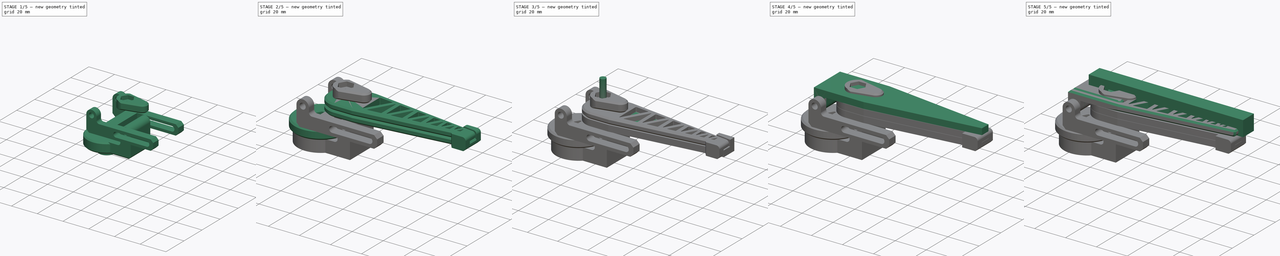
[diagram: build sequence overview — one tinted view per stage of 5, left to right]
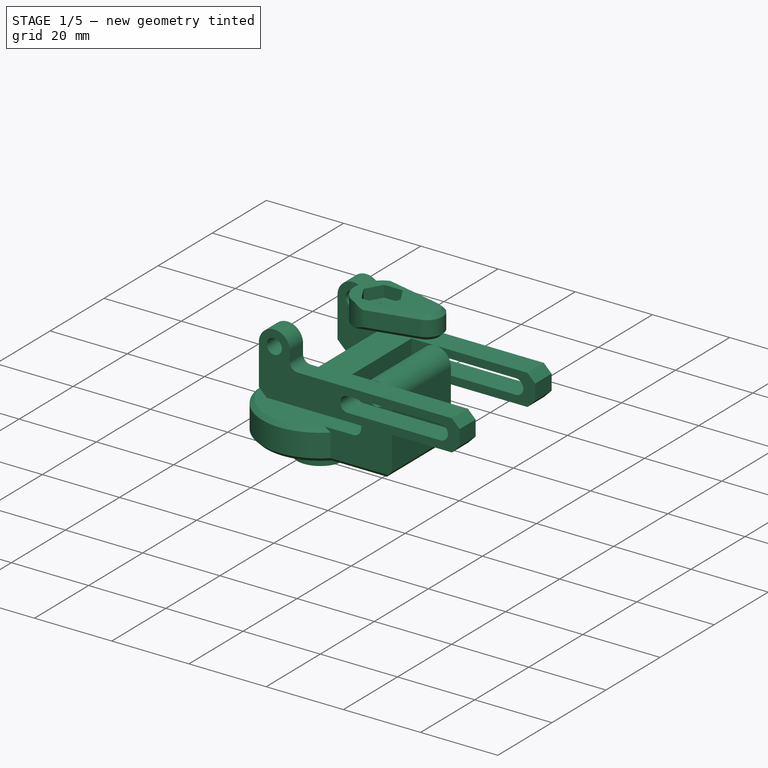
[diagram: stage 1 of 5 — iso view after this stage's code; geometry added in this stage tinted green]
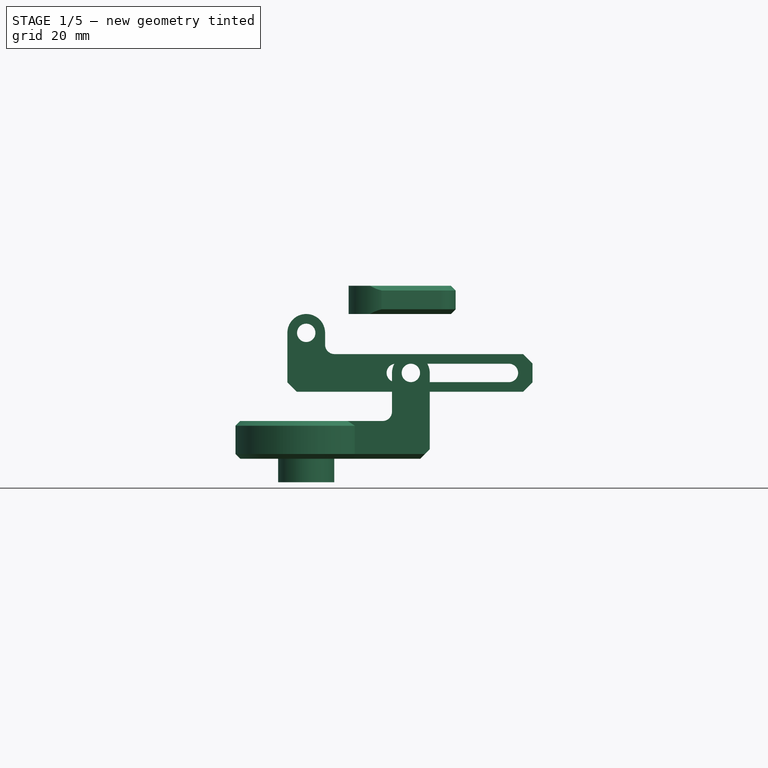
[diagram: stage 1 of 5 — front view after this stage's code; geometry added in this stage tinted green]
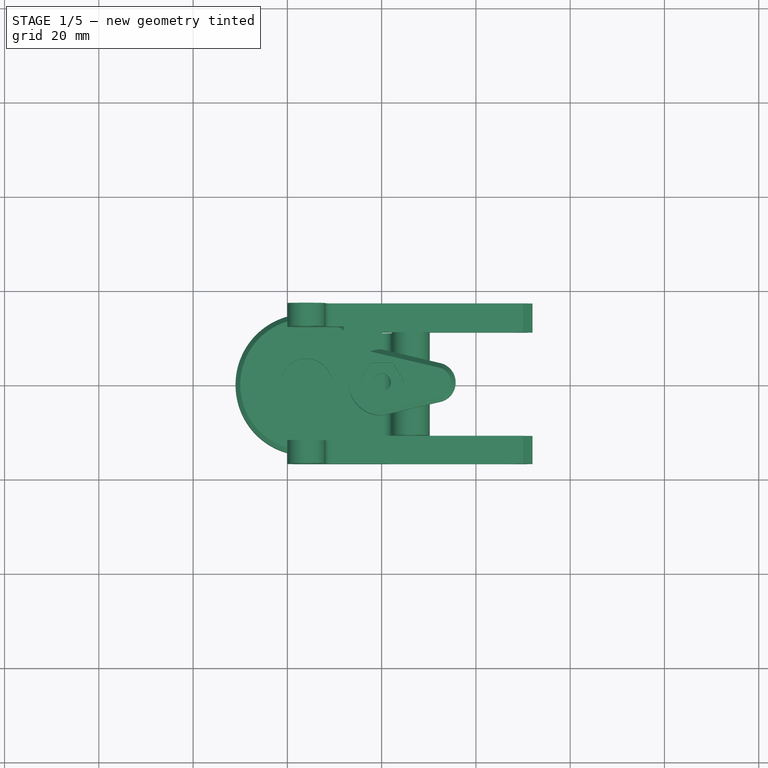
[diagram: stage 1 of 5 — top view after this stage's code; geometry added in this stage tinted green]
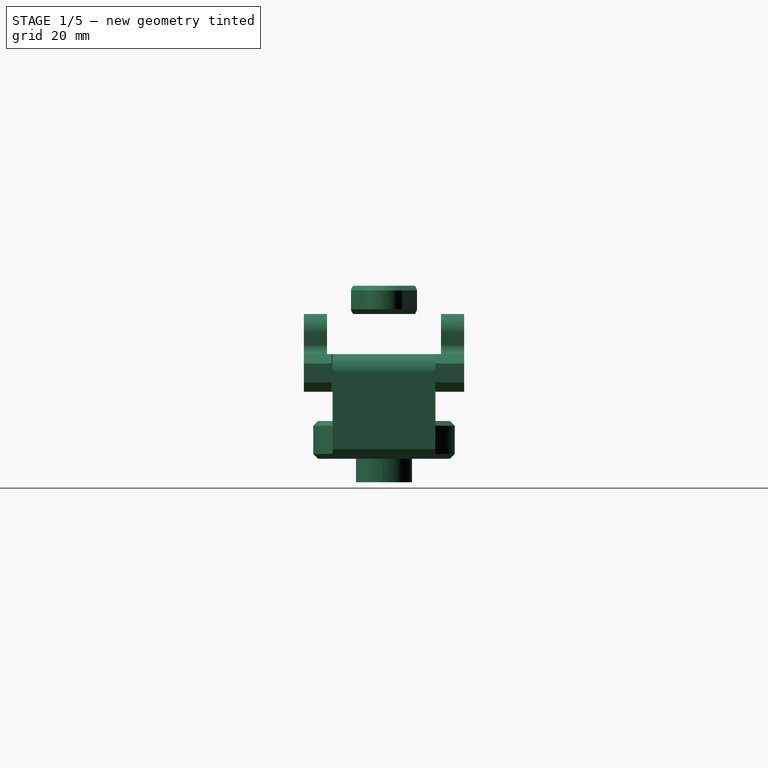
[diagram: stage 1 of 5 — right view after this stage's code; geometry added in this stage tinted green]
FCSTD DOCUMENT  (FreeCAD 0.14R3700 (Git))
Label: tripod_mk2
License: CC-BY 3.0
LicenseURL: http://creativecommons.org/licenses/by/3.0/
objects: Sketcher::SketchObject×17, Part::Cut×16, PartDesign::Pad×12, Part::Fillet×10, Part::Chamfer×10, Part::MultiFuse×9, Part::Box×7, Part::FeaturePython×7, Part::Cylinder×5, Part::RegularPolygon×3, Part::Extrusion×3, Part::Feature×3, Part::Loft×1, Part::Revolution×1
note: 116 computed .brp shape members not serialized (recipe doc carries the construction recipe); baked Part::Feature solids carry a one-line shape summary decoded from their .brp

FEATURE [Sketcher::SketchObject] Sketch003  label="skPivot"
  Placement = pos=(0,17,0) rot=(1,0,0;1.5708rad)
  sketch-geometry (17):
    g0: LineSegment StartX=-12 StartY=-4 StartZ=0 EndX=-12 EndY=-8.5 EndZ=0
    g1: LineSegment StartX=-12 StartY=-8.5 StartZ=0 EndX=32 EndY=-8.5 EndZ=0
    g2: LineSegment StartX=32 StartY=-8.5 StartZ=0 EndX=32 EndY=-16.5 EndZ=0
    g3: LineSegment StartX=32 StartY=-16.5 StartZ=0 EndX=-20 EndY=-16.5 EndZ=0
    g4: LineSegment StartX=-20 StartY=-16.5 StartZ=0 EndX=-20 EndY=-4 EndZ=0
    g5: LineSegment [constr] StartX=-20 StartY=-4 StartZ=0 EndX=-12 EndY=-4 EndZ=0
    g6: ArcOfCircle CenterX=-16 CenterY=-4 CenterZ=0 NormalX=0 NormalY=0 NormalZ=1 Radius=4 StartAngle=0 EndAngle=3.14159
    g7: Circle CenterX=-16 CenterY=-4 CenterZ=0 NormalX=0 NormalY=0 NormalZ=1 Radius=1.95
    g8: LineSegment [constr] StartX=-12 StartY=-4 StartZ=0 EndX=0 EndY=-4 EndZ=0
    g9: LineSegment [constr] StartX=0 StartY=-4 StartZ=0 EndX=0 EndY=0 EndZ=0
    g10: LineSegment StartX=3 StartY=-10.55 StartZ=0 EndX=27 EndY=-10.55 EndZ=0
    g11: LineSegment [constr] StartX=27 StartY=-10.55 StartZ=0 EndX=27 EndY=-14.45 EndZ=0
    g12: LineSegment StartX=27 StartY=-14.45 StartZ=0 EndX=3 EndY=-14.45 EndZ=0
    g13: LineSegment [constr] StartX=3 StartY=-14.45 StartZ=0 EndX=3 EndY=-10.55 EndZ=0
    g14: ArcOfCircle CenterX=3 CenterY=-12.5 CenterZ=0 NormalX=0 NormalY=0 NormalZ=1 Radius=1.95 StartAngle=1.5708 EndAngle=4.71239
    g15: ArcOfCircle CenterX=27 CenterY=-12.5 CenterZ=0 NormalX=0 NormalY=0 NormalZ=1 Radius=1.95 StartAngle=4.71239 EndAngle=7.85398
    g16: LineSegment [constr] StartX=27 StartY=-12.5 StartZ=0 EndX=32 EndY=-12.5 EndZ=0
  constraints (49):
    c: Vertical(g0)
    c: Coincident(g0,g1)
    c: Horizontal(g1)
    c: Coincident(g1,g2)
    c: Vertical(g2)
    c: Horizontal(g3)
    c: Coincident(g3,g4)
    c: Vertical(g4)
    c: Coincident(g4,g5)
    c: Horizontal(g5)
    c: Coincident(g0,g5)
    c: PointOnObject(g6,g5)
    c: Coincident(g4,g6)
    c: Coincident(g0,g6)
    c: Coincident(g7,g6)
    c: Radius(g7) = 1.95
    c: Horizontal(g8)
    c: Coincident(g8,g9)
    c: Vertical(g9)
    c: Coincident(g9,g-1)
    c: Coincident(g0,g8)
    c: DistanceY(g9) = 4
    c: DistanceX(g5) = 8
    c: DistanceX(g8) = 12
    c: DistanceY(g0) = -4.5
    c: DistanceX(g1) = 44
    c: DistanceY(g2) = -8
    c: Coincident(g3,g2)
    c: Coincident(g10,g11)
    c: Coincident(g11,g12)
    c: Coincident(g12,g13)
    c: Coincident(g13,g10)
    c: Horizontal(g10)
    c: Horizontal(g12)
    c: Vertical(g11)
    c: Vertical(g13)
    c: PointOnObject(g14,g13)
    c: Coincident(g14,g10)
    c: Coincident(g14,g12)
    c: PointOnObject(g15,g11)
    c: Coincident(g10,g15)
    c: Coincident(g11,g15)
    c: Radius(g14) = 1.95
    c: Horizontal(g16)
    c: Coincident(g15,g16)
    c: PointOnObject(g16,g2)
    c: Symmetric(g1,g2,g16)
    c: DistanceX(g16) = 5
    c: DistanceX(g10) = 24
FEATURE [PartDesign::Pad] Pad003  label="PivotArm"
  Length = 34
  Length2 = 100
  Placement = pos=(0,17,0) rot=(1,0,0;1.5708rad)
  Sketch = -> Sketch003
  Type = 0
FEATURE [Part::Box] Box004  label="Cube003"
  Height = 19
  Length = 13
  Placement = pos=(-21,-12.1,-18) rot=(0,0,1;0rad)
  Width = 24.2
FEATURE [Part::Cylinder] Cylinder003  label="Cylinder001"
  Angle = 360
  Height = 10
  Placement = pos=(-16,0,-35.7) rot=(0,0,1;0rad)
  Radius = 5.95
FEATURE [Part::Cut] Cut016
  Base = -> Pad003
  Tool = -> Box004
FEATURE [Part::Box] Box007  label="Cube006"
  Height = 10
  Length = 36
  Placement = pos=(0,-11.1,-17) rot=(0,0,1;0rad)
  Width = 22
FEATURE [Part::Cut] Cut017
  Base = -> Cut016
  Tool = -> Box007
FEATURE [Part::Cylinder] Cylinder005  label="Cylinder003"
  Angle = 360
  Height = 13
  Radius = 1.95
FEATURE [Part::RegularPolygon] RegularPolygon002  label="Regular polygon002"
  Circumradius = 4.8
  Polygon = 6
FEATURE [Part::Extrusion] Extrude_RegularPolygon002  label="Regular polygon002_Extrude"
  Base = -> RegularPolygon002
  Dir = (0,0,3)
  Placement = pos=(0,0,3) rot=(0,0,1;0rad)
  Solid = true
FEATURE [Sketcher::SketchObject] Sketch018
  sketch-geometry (6):
    g0: LineSegment [constr] StartX=0 StartY=-7 StartZ=0 EndX=0 EndY=7 EndZ=0
    g1: LineSegment StartX=0 StartY=7 StartZ=0 EndX=12.6579 EndY=4.03724 EndZ=0
    g2: LineSegment [constr] StartX=12.6579 StartY=4.03724 StartZ=0 EndX=12.6579 EndY=-4.03724 EndZ=0
    g3: LineSegment StartX=12.6579 StartY=-4.03724 StartZ=0 EndX=0 EndY=-7 EndZ=0
    g4: ArcOfCircle CenterX=0 CenterY=0 CenterZ=0 NormalX=0 NormalY=0 NormalZ=1 Radius=7 StartAngle=1.5708 EndAngle=4.71239
    g5: ArcOfCircle CenterX=11.5 CenterY=0 CenterZ=0 NormalX=0 NormalY=0 NormalZ=1 Radius=4.2 StartAngle=4.99169 EndAngle=7.57468
  constraints (18):
    c: Vertical(g0)
    c: Coincident(g0,g1)
    c: Coincident(g1,g2)
    c: Vertical(g2)
    c: Coincident(g2,g3)
    c: Coincident(g0,g3)
    c: Symmetric(g0,g0,g-1)
    c: Symmetric(g1,g2,g-1)
    c: PointOnObject(g4,g0)
    c: Coincident(g0,g4)
    c: Coincident(g0,g4)
    c: Coincident(g4,g-1)
    c: Radius(g4) = 7
    c: Coincident(g1,g5)
    c: Coincident(g2,g5)
    c: Distance(g3) = 13
    c: Radius(g5) = 4.2
    c: DistanceX(g-1,g5) = 11.5
FEATURE [PartDesign::Pad] Pad013
  Length = 6
  Length2 = 100
  Sketch = -> Sketch018
  Type = 0
FEATURE [Part::MultiFuse] Fusion009
  Shapes = -> [Cylinder005,Extrude_RegularPolygon002]
FEATURE [Part::Chamfer] Chamfer010
  Base = -> Pad013
  Edges = 2 edges r=1: [Edge11,Edge12]
FEATURE [Part::Cut] Cut018  label="Nob"
  Base = -> Chamfer010
  Tool = -> Fusion009
FEATURE [Part::Chamfer] Chamfer011
  Base = -> Cut017
  Edges = 6 edges r=2: [Edge15,Edge19,Edge31,Edge33,Edge36,Edge38]
FEATURE [Part::Fillet] Fillet008  label="ArmConnector"
  Base = -> Chamfer011
  Edges = 2 edges r=2: [Edge16,Edge24]
FEATURE [Part::Feature] Fusion008001  label="ArmMount001"
  shape: bbox 41.2 x 30 x 22.2 mm, 12 faces (baked)
FEATURE [Part::Chamfer] Chamfer012
  Base = -> Fusion008001
  Edges = 5 edges: [Edge1 r=2,Edge8 r=1,Edge13 r=1,Edge19 r=1,Edge20 r=1]
FEATURE [Part::Fillet] Fillet009  label="ArmMount_Complete"
  Base = -> Chamfer012
  Edges = 1 edges r=2: [Edge32]
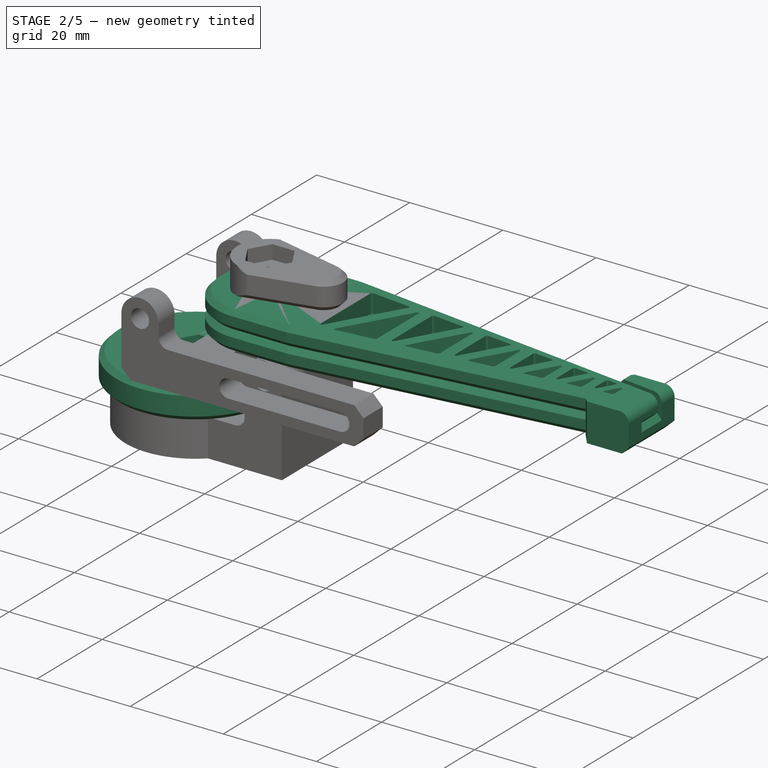
[diagram: stage 2 of 5 — iso view after this stage's code; geometry added in this stage tinted green]
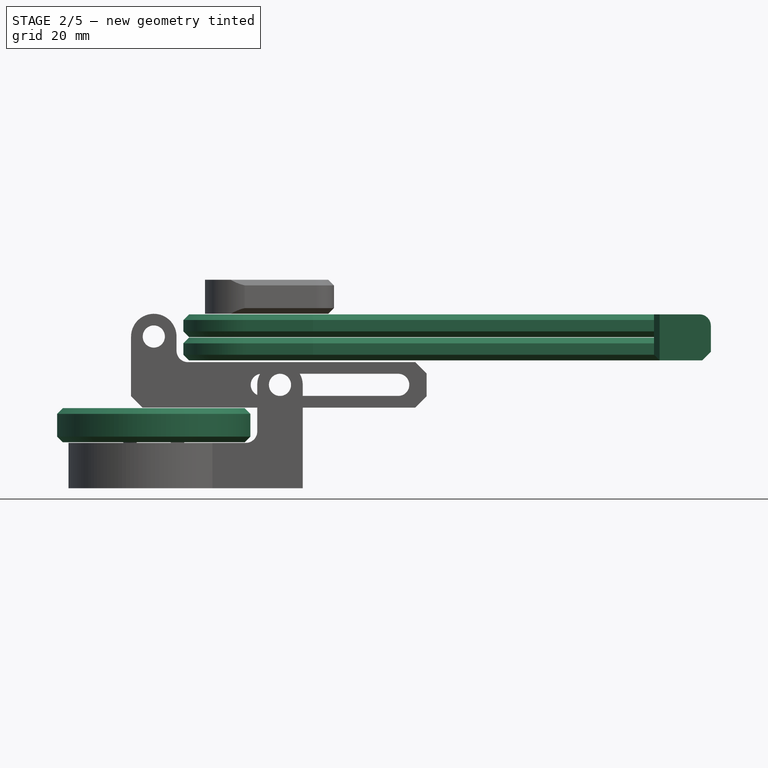
[diagram: stage 2 of 5 — front view after this stage's code; geometry added in this stage tinted green]
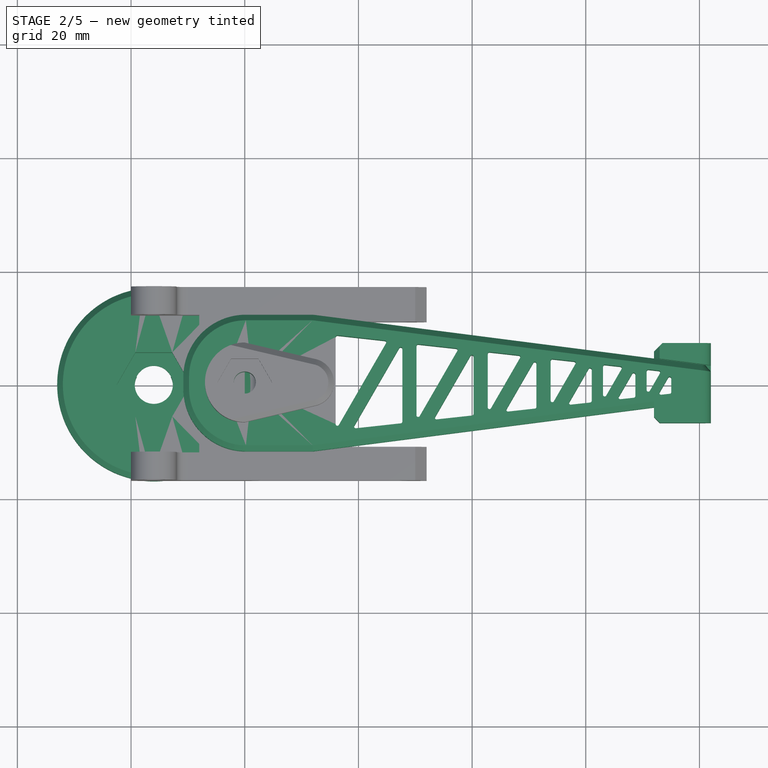
[diagram: stage 2 of 5 — top view after this stage's code; geometry added in this stage tinted green]
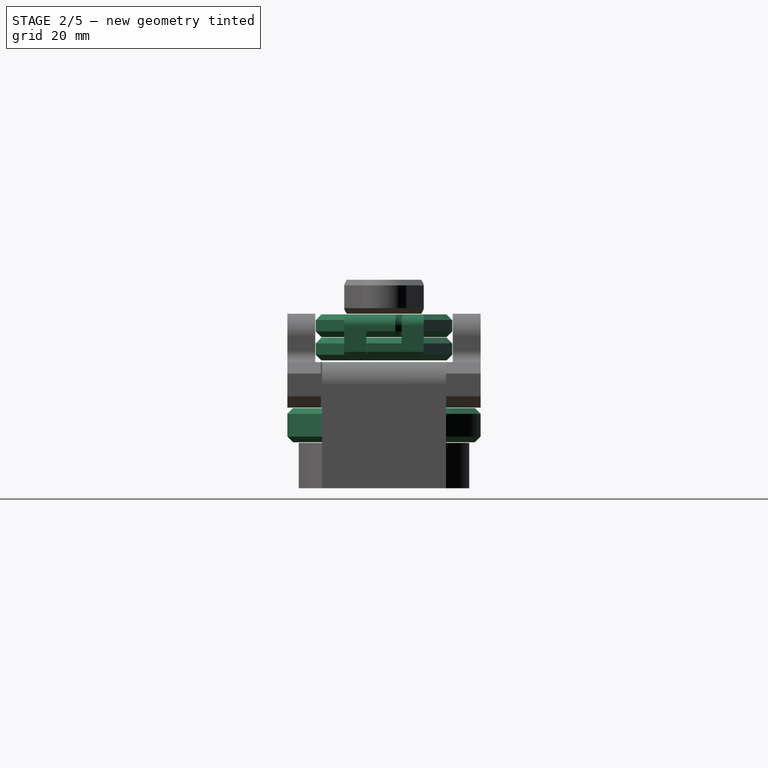
[diagram: stage 2 of 5 — right view after this stage's code; geometry added in this stage tinted green]
FEATURE [Sketcher::SketchObject] Sketch004  label="skArm"
  Placement = pos=(10.2,10.9,-30.7) rot=(1,0,0;1.5708rad)
  sketch-geometry (8):
    g0: LineSegment StartX=-17 StartY=8 StartZ=0 EndX=-8 EndY=8 EndZ=0
    g1: LineSegment StartX=0 StartY=0 StartZ=0 EndX=-17 EndY=0 EndZ=0
    g2: LineSegment StartX=-17 StartY=0 StartZ=0 EndX=-17 EndY=8 EndZ=0
    g3: LineSegment StartX=0 StartY=0 StartZ=0 EndX=0 EndY=18.2 EndZ=0
    g4: LineSegment [constr] StartX=0 StartY=18.2 StartZ=0 EndX=-8 EndY=18.2 EndZ=0
    g5: LineSegment StartX=-8 StartY=18.2 StartZ=0 EndX=-8 EndY=8 EndZ=0
    g6: ArcOfCircle CenterX=-4 CenterY=18.2 CenterZ=0 NormalX=0 NormalY=0 NormalZ=1 Radius=4 StartAngle=0 EndAngle=3.14159
    g7: Circle CenterX=-4 CenterY=18.2 CenterZ=0 NormalX=0 NormalY=0 NormalZ=1 Radius=1.95
  constraints (22):
    c: Coincident(g1,g2)
    c: Coincident(g2,g0)
    c: Horizontal(g0)
    c: Horizontal(g1)
    c: Vertical(g2)
    c: Vertical(g3)
    c: Coincident(g3,g4)
    c: Horizontal(g4)
    c: Coincident(g4,g5)
    c: Vertical(g5)
    c: Coincident(g1,g3)
    c: Coincident(g0,g5)
    c: PointOnObject(g6,g4)
    c: Coincident(g6,g4)
    c: Coincident(g3,g6)
    c: Coincident(g7,g6)
    c: Radius(g7) = 1.95
    c: Radius(g6) = 4
    c: Coincident(g1,g-1)
    c: DistanceX(g1) = -17
    c: DistanceY(g2) = 8
    c: DistanceY(g3) = 18.2
FEATURE [PartDesign::Pad] Pad004  label="Arm"
  Length = 21.8
  Length2 = 100
  Placement = pos=(10.2,10.9,-30.7) rot=(1,0,0;1.5708rad)
  Sketch = -> Sketch004
  Type = 0
FEATURE [Part::Feature] Chamfer004  label="BackLegB001"
  shape: bbox 92.8 x 24 x 8.1 mm, 97 faces (baked)
FEATURE [Part::Chamfer] Chamfer005  label="BackLegB_Complete"
  Base = -> Chamfer004
  Edges = 14 edges: [Edge7 r=1,Edge11 r=1,Edge13 r=1.5,Edge27 r=1,Edge30 r=1,Edge35 r=1,Edge36 r=1,Edge37 r=1,Edge38 r=1,Edge43 r=1,Edge45 r=1,Edge46 r=1,Edge47 r=1,Edge48 r=1]
FEATURE [Part::Feature] Chamfer006  label="BackLegA001"
  shape: bbox 92.8 x 24 x 8.1 mm, 95 faces (baked)
FEATURE [Part::Chamfer] Chamfer007  label="BackLegA_Complete"
  Base = -> Chamfer006
  Edges = 13 edges r=1: [Edge1,Edge4,Edge13,Edge14,Edge31,Edge37,Edge41,Edge42,Edge44,Edge45,Edge46,Edge47,Edge48]
FEATURE [Sketcher::SketchObject] Sketch014
  Placement = pos=(-16,0,-26.7) rot=(0,0,1;0rad)
  sketch-geometry (2):
    g0: Circle CenterX=0 CenterY=0 CenterZ=0 NormalX=0 NormalY=0 NormalZ=1 Radius=15
    g1: Circle CenterX=0 CenterY=0 CenterZ=0 NormalX=0 NormalY=0 NormalZ=1 Radius=5.55
  constraints (4):
    c: Coincident(g1,g0)
    c: Radius(g1) = 5.55
    c: Radius(g0) = 15
    c: Coincident(g0,g-1)
FEATURE [PartDesign::Pad] Pad010
  Length = 8
  Length2 = 100
  Placement = pos=(-16,0,-26.7) rot=(0,0,1;0rad)
  Sketch = -> Sketch014
  Type = 0
FEATURE [Sketcher::SketchObject] Sketch015
  Placement = pos=(-16,0,-18.6) rot=(0,0,1;0rad)
  sketch-geometry (2):
    g0: Circle CenterX=0 CenterY=0 CenterZ=0 NormalX=0 NormalY=0 NormalZ=1 Radius=17
    g1: Circle CenterX=0 CenterY=0 CenterZ=0 NormalX=0 NormalY=0 NormalZ=1 Radius=3.35
  constraints (4):
    c: Coincident(g1,g0)
    c: Radius(g1) = 3.35
    c: Radius(g0) = 17
    c: Coincident(g0,g-1)
FEATURE [PartDesign::Pad] Pad011
  Length = 6
  Length2 = 100
  Placement = pos=(-16,0,-18.6) rot=(0,0,1;0rad)
  Sketch = -> Sketch015
  Type = 0
FEATURE [Sketcher::SketchObject] Sketch016
  Placement = pos=(-16,0,-26.6) rot=(0,0,1;0rad)
  sketch-geometry (2):
    g0: Circle CenterX=0 CenterY=0 CenterZ=0 NormalX=0 NormalY=0 NormalZ=1 Radius=5.35
    g1: Circle CenterX=0 CenterY=0 CenterZ=0 NormalX=0 NormalY=0 NormalZ=1 Radius=3.35
  constraints (4):
    c: Coincident(g1,g0)
    c: Radius(g1) = 3.35
    c: Radius(g0) = 5.35
    c: Coincident(g0,g-1)
FEATURE [PartDesign::Pad] Pad012
  Length = 8
  Length2 = 100
  Placement = pos=(-16,0,-26.6) rot=(0,0,1;0rad)
  Sketch = -> Sketch016
  Type = 0
FEATURE [Sketcher::SketchObject] Sketch017
  Placement = pos=(0,0,0) rot=(0.57735,0.57735,0.57735;2.0944rad)
  sketch-geometry (4):
    g0: LineSegment StartX=5.34 StartY=-0.400007 StartZ=0 EndX=5.34 EndY=0.400007 EndZ=0
    g1: LineSegment StartX=5.34 StartY=0.400007 StartZ=0 EndX=5.74 EndY=0.400007 EndZ=0
    g2: LineSegment StartX=5.74 StartY=0 StartZ=0 EndX=5.74 EndY=0.400007 EndZ=0
    g3: ArcOfCircle CenterX=5.34 CenterY=-6.98838e-06 CenterZ=0 NormalX=0 NormalY=0 NormalZ=1 Radius=0.4 StartAngle=4.71239 EndAngle=6.2832
  constraints (13):
    c: Vertical(g0)
    c: Symmetric(g0,g0,g-1)
    c: PointOnObject(g3,g0)
    c: DistanceX(g-1,g3) = 5.34
    c: Horizontal(g1)
    c: Coincident(g0,g1)
    c: Vertical(g2)
    c: Coincident(g2,g1)
    c: Coincident(g3,g2)
    c: Coincident(g0,g3)
    c: Radius(g3) = 0.4
    c: Tangent(g2,g3)
    c: PointOnObject(g2,g-1)
FEATURE [Part::Revolution] Revolve
  Angle = 360
  Axis = (0,0,1)
  Base = (0,0,0)
  Placement = pos=(-16,0,-26.2) rot=(0,0,-1;1.5708rad)
  Solid = true
  Source = -> Sketch017
FEATURE [Part::Cut] Cut013
  Base = -> Pad010
  Placement = pos=(0,0,-4) rot=(0,0,1;0rad)
  Tool = -> Cylinder003
FEATURE [Part::RegularPolygon] RegularPolygon001  label="Regular polygon001"
  Circumradius = 6.5
  Polygon = 6
FEATURE [Part::Extrusion] Extrude_RegularPolygon001  label="Regular polygon001_Extrude"
  Base = -> RegularPolygon001
  Dir = (0,0,5)
  Placement = pos=(-16,0,-16.6) rot=(0,0,1;0rad)
  Solid = true
FEATURE [Part::Cut] Cut014
  Base = -> Pad011
  Tool = -> Extrude_RegularPolygon001
FEATURE [Part::MultiFuse] Fusion006
  Shapes = -> [Pad012,Revolve]
FEATURE [Part::Box] Box006  label="Cube005"
  Height = 10
  Length = 6
  Placement = pos=(-19,-7,-28) rot=(0,0,1;0rad)
  Width = 14
FEATURE [Part::Cut] Cut015
  Base = -> Fusion006
  Tool = -> Box006
FEATURE [Part::MultiFuse] Fusion007
  Shapes = -> [Cut015,Cut014]
FEATURE [Part::Chamfer] Chamfer009  label="Mount"
  Base = -> Fusion007
  Edges = 2 edges r=1: [Edge38,Edge62]
  Placement = pos=(0,0,-4) rot=(0,0,1;0rad)
FEATURE [Part::MultiFuse] Fusion008  label="ArmMount"
  Shapes = -> [Cut013,Pad004]
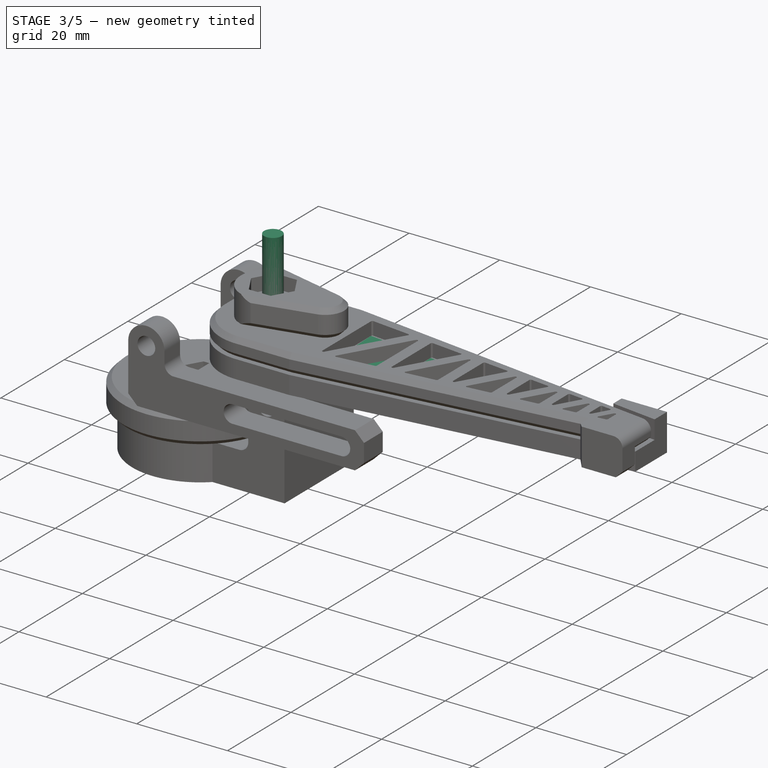
[diagram: stage 3 of 5 — iso view after this stage's code; geometry added in this stage tinted green]
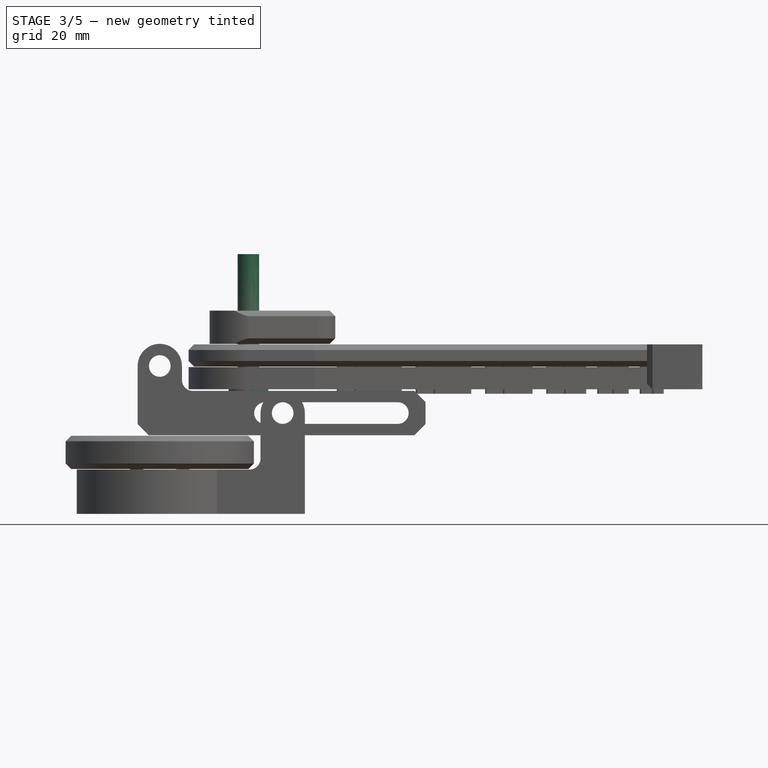
[diagram: stage 3 of 5 — front view after this stage's code; geometry added in this stage tinted green]
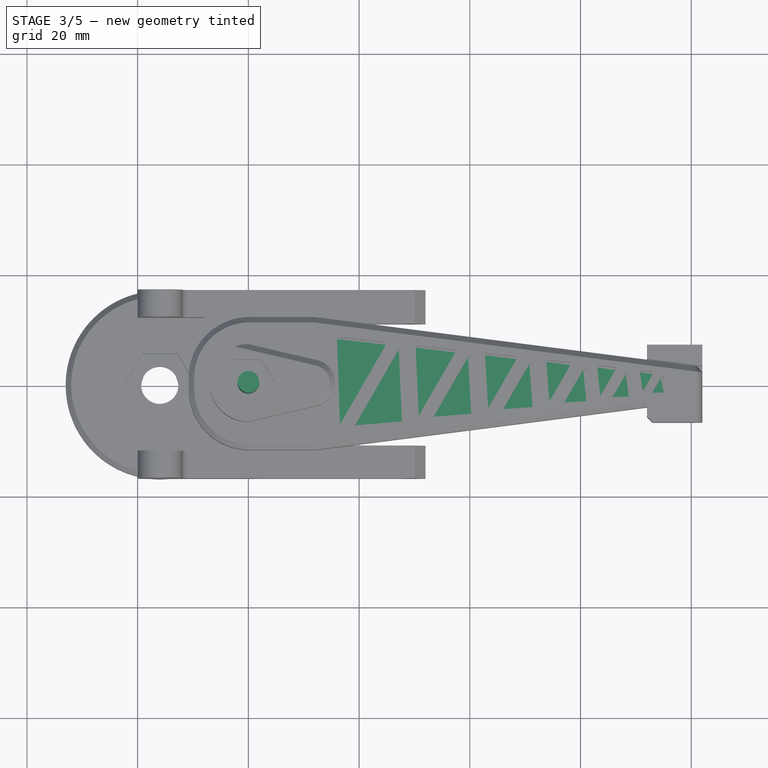
[diagram: stage 3 of 5 — top view after this stage's code; geometry added in this stage tinted green]
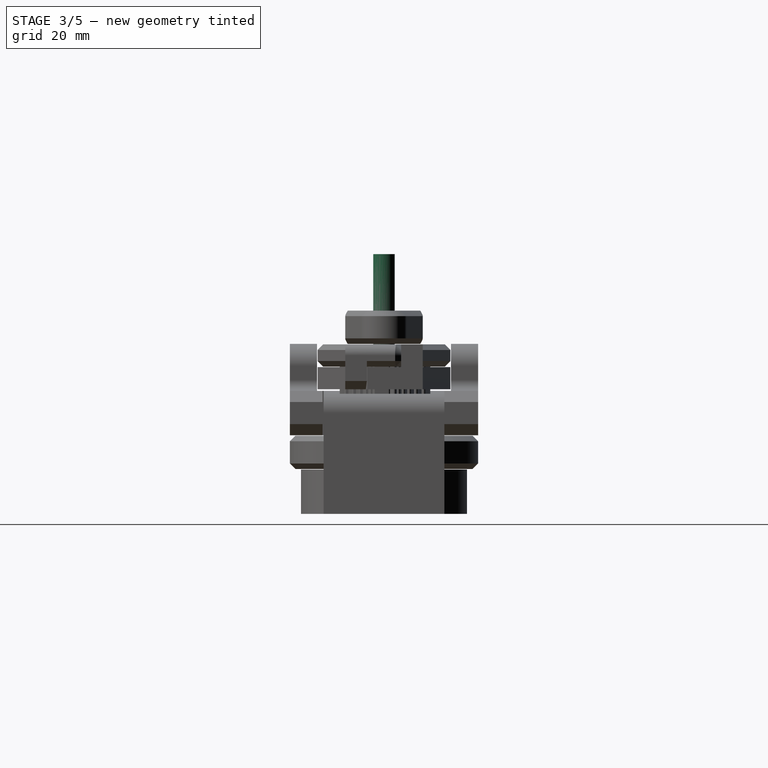
[diagram: stage 3 of 5 — right view after this stage's code; geometry added in this stage tinted green]
FEATURE [PartDesign::Pad] Pad  label="Legbase"
  Length = 4
  Length2 = 100
  Sketch = -> Sketch
  Type = 0
FEATURE [Part::FeaturePython] Clone001  label="LefBack2"  # Draft clone (typed FeaturePython)
  Objects = -> [Pad]
  Placement = pos=(0,0,-8.2) rot=(0,0,1;0rad)
  Scale = (1,1,1)
FEATURE [Part::Cylinder] Cylinder  label="LegPin"
  Angle = 360
  Height = 13
  Placement = pos=(0,0,-8.9) rot=(0,0,1;0rad)
  Radius = 1.95
FEATURE [PartDesign::Pad] Pad005  label="StopCut"
  Length = 13
  Length2 = 100
  Placement = pos=(0,0,-9) rot=(0,0,1;0rad)
  Sketch = -> Sketch005
  Type = 0
FEATURE [Part::FeaturePython] Clone002  label="Clone of LegPin"  # Draft clone (typed FeaturePython)
  Objects = -> [Cylinder]
  Placement = pos=(0,0,-8.9) rot=(0,0,1;0rad)
  Scale = (1,1,1)
FEATURE [Part::Box] Box002  label="Cube001"
  Height = 13
  Length = 11
  Placement = pos=(-21.8,-13,-11) rot=(0,0,1;0rad)
  Width = 26
FEATURE [Part::MultiFuse] Fusion001  label="LegCuts"
  Shapes = -> [Box002,Pad005,Clone002]
FEATURE [Part::FeaturePython] Clone003  label="Clone of LegCuts"  # Draft clone (typed FeaturePython)
  Objects = -> [Fusion001]
  Scale = (1,1,1)
FEATURE [Part::Cut] Cut002
  Base = -> Clone001
  Tool = -> Clone003
FEATURE [Part::Fillet] Fillet  label="Leg2"
  Base = -> Cut002
  Edges = 2 edges r=11: [Edge2,Edge16]
FEATURE [Sketcher::SketchObject] Sketch006
  sketch-geometry (41):
    g0: LineSegment [constr] StartX=15 StartY=-8.5 StartZ=0 EndX=15 EndY=8.5 EndZ=0
    g1: LineSegment [constr] StartX=15 StartY=8.5 StartZ=0 EndX=81 EndY=1.25 EndZ=0
    g2: LineSegment [constr] StartX=81 StartY=1.25 StartZ=0 EndX=81 EndY=-1.25 EndZ=0
    g3: LineSegment [constr] StartX=81 StartY=-1.25 StartZ=0 EndX=15 EndY=-8.5 EndZ=0
    g4: LineSegment [constr] StartX=15 StartY=0 StartZ=0 EndX=81 EndY=0 EndZ=0
    g5: LineSegment StartX=15.994 StartY=8.39081 StartZ=0 EndX=15.994 EndY=-8.39081 EndZ=0
    g6: LineSegment StartX=15.994 StartY=-8.39081 StartZ=0 EndX=25.1051 EndY=7.38997 EndZ=0
    g7: LineSegment StartX=25.1051 StartY=7.38997 StartZ=0 EndX=15.994 EndY=8.39081 EndZ=0
    g8: LineSegment StartX=27.7314 StartY=7.10147 StartZ=0 EndX=27.7314 EndY=-7.10147 EndZ=0
    g9: LineSegment StartX=27.7314 StartY=-7.10147 StartZ=0 EndX=18.9761 EndY=-8.06323 EndZ=0
    g10: LineSegment StartX=18.9761 StartY=-8.06323 StartZ=0 EndX=27.7314 EndY=7.10147 EndZ=0
    g11: LineSegment StartX=30.2165 StartY=6.82849 StartZ=0 EndX=30.2165 EndY=-6.82849 EndZ=0
    g12: LineSegment StartX=30.2165 StartY=-6.82849 StartZ=0 EndX=37.6311 EndY=6.01401 EndZ=0
    g13: LineSegment StartX=37.6311 StartY=6.01401 StartZ=0 EndX=30.2165 EndY=6.82849 EndZ=0
    g14: LineSegment StartX=33.1985 StartY=-6.50092 StartZ=0 EndX=40.2575 EndY=5.72551 EndZ=0
    g15: LineSegment StartX=40.2575 StartY=5.72551 StartZ=0 EndX=40.2575 EndY=-5.72551 EndZ=0
    g16: LineSegment StartX=40.2575 StartY=-5.72551 StartZ=0 EndX=33.1985 EndY=-6.50092 EndZ=0
    g17: LineSegment StartX=42.7575 StartY=5.45088 StartZ=0 EndX=42.7575 EndY=-5.45088 EndZ=0
    g18: LineSegment StartX=42.7575 StartY=-5.45088 StartZ=0 EndX=48.6762 EndY=4.80072 EndZ=0
    g19: LineSegment StartX=48.6762 StartY=4.80072 StartZ=0 EndX=42.7575 EndY=5.45088 EndZ=0
    g20: LineSegment StartX=51.3184 StartY=4.51048 StartZ=0 EndX=45.7575 EndY=-5.12134 EndZ=0
    g21: LineSegment StartX=45.7575 StartY=-5.12134 StartZ=0 EndX=51.3184 EndY=-4.51048 EndZ=0
    g22: LineSegment StartX=51.3184 StartY=-4.51048 StartZ=0 EndX=51.3184 EndY=4.51048 EndZ=0
    g23: LineSegment StartX=53.8184 StartY=4.23586 StartZ=0 EndX=53.8184 EndY=-4.23586 EndZ=0
    g24: LineSegment StartX=53.8184 StartY=-4.23586 StartZ=0 EndX=58.4178 EndY=3.73062 EndZ=0
    g25: LineSegment StartX=58.4178 StartY=3.73062 StartZ=0 EndX=53.8184 EndY=4.23586 EndZ=0
    g26: LineSegment StartX=61.0442 StartY=3.44211 StartZ=0 EndX=56.8005 EndY=-3.90828 EndZ=0
    g27: LineSegment StartX=56.8005 StartY=-3.90828 StartZ=0 EndX=61.0442 EndY=-3.44211 EndZ=0
    g28: LineSegment StartX=61.0442 StartY=-3.44211 StartZ=0 EndX=61.0442 EndY=3.44211 EndZ=0
    g29: LineSegment StartX=63.0323 StartY=3.22373 StartZ=0 EndX=63.0323 EndY=-3.22373 EndZ=0
    g30: LineSegment StartX=63.0323 StartY=-3.22373 StartZ=0 EndX=66.5327 EndY=2.83921 EndZ=0
    g31: LineSegment StartX=66.5327 StartY=2.83921 StartZ=0 EndX=63.0323 EndY=3.22373 EndZ=0
    g32: LineSegment StartX=68.7213 StartY=2.59879 StartZ=0 EndX=65.5173 EndY=-2.95075 EndZ=0
    g33: LineSegment StartX=65.5173 StartY=-2.95075 StartZ=0 EndX=68.7213 EndY=-2.59879 EndZ=0
    g34: LineSegment StartX=68.7213 StartY=-2.59879 StartZ=0 EndX=68.7213 EndY=2.59879 EndZ=0
    g35: LineSegment StartX=70.7094 StartY=2.38041 StartZ=0 EndX=70.7094 EndY=-2.38041 EndZ=0
    g36: LineSegment StartX=70.7094 StartY=-2.38041 StartZ=0 EndX=73.2941 EndY=2.09648 EndZ=0
    g37: LineSegment StartX=73.2941 StartY=2.09648 StartZ=0 EndX=70.7094 EndY=2.38041 EndZ=0
    g38: LineSegment StartX=75.045 StartY=1.90414 StartZ=0 EndX=72.6974 EndY=-2.16203 EndZ=0
    g39: LineSegment StartX=72.6974 StartY=-2.16203 StartZ=0 EndX=75.045 EndY=-1.90414 EndZ=0
    g40: LineSegment StartX=75.045 StartY=-1.90414 StartZ=0 EndX=75.045 EndY=1.90414 EndZ=0
  constraints (123):
    c: Vertical(g0)
    c: Coincident(g0,g1)
    c: Coincident(g1,g2)
    c: Vertical(g2)
    c: Coincident(g2,g3)
    c: Coincident(g0,g3)
    c: Symmetric(g0,g0,g-1)
    c: Symmetric(g1,g2,g-1)
    c: DistanceY(g0) = 17
    c: Horizontal(g4)
    c: PointOnObject(g4,g2)
    c: PointOnObject(g4,g0)
    c: DistanceY(g2) = -2.5
    c: DistanceX(g-1,g4) = 15
    c: DistanceX(g4) = 66
    c: PointOnObject(g5,g1)
    c: PointOnObject(g5,g3)
    c: Vertical(g5)
    c: Coincident(g5,g6)
    c: PointOnObject(g6,g1)
    c: Coincident(g6,g7)
    c: Coincident(g7,g5)
    c: PointOnObject(g8,g1)
    c: PointOnObject(g8,g3)
    c: Vertical(g8)
    c: Coincident(g8,g9)
    c: PointOnObject(g9,g3)
    c: Coincident(g9,g10)
    c: Coincident(g10,g8)
    c: Angle(g6,g5) = 0.523599
    c: Angle(g10,g8) = 0.523599
    c: Distance(g0,g5) = 1
    c: PointOnObject(g11,g1)
    c: PointOnObject(g11,g3)
    c: Vertical(g11)
    c: Coincident(g11,g12)
    c: PointOnObject(g12,g1)
    c: Coincident(g12,g13)
    c: Coincident(g13,g11)
    c: PointOnObject(g14,g3)
    c: PointOnObject(g14,g1)
    c: Coincident(g14,g15)
    c: PointOnObject(g15,g3)
    c: Vertical(g15)
    c: Coincident(g15,g16)
    c: Coincident(g16,g14)
    c: Angle(g12,g11) = 0.523599
    c: Angle(g14,g15) = 0.523599
    c: Distance(g8,g11) = 2.5
    c: Distance(g11,g14) = 3
    c: Distance(g5,g9) = 3
    c: PointOnObject(g17,g3)
    c: Vertical(g17)
    c: Coincident(g17,g18)
    c: PointOnObject(g18,g1)
    c: Coincident(g18,g19)
    c: Coincident(g19,g17)
    c: PointOnObject(g17,g1)
    c: PointOnObject(g20,g1)
    c: PointOnObject(g20,g3)
    c: Coincident(g20,g21)
    c: Coincident(g21,g22)
    c: Vertical(g22)
    c: PointOnObject(g23,g1)
    c: PointOnObject(g23,g3)
    c: Vertical(g23)
    c: Coincident(g23,g24)
    c: PointOnObject(g24,g1)
    c: Coincident(g24,g25)
    c: Coincident(g25,g23)
    c: PointOnObject(g26,g3)
    c: Coincident(g26,g27)
    c: Coincident(g27,g28)
    c: Vertical(g28)
    c: Coincident(g26,g28)
    c: PointOnObject(g26,g1)
    c: Angle(g18,g17) = 0.523599
    c: Angle(g20,g22) = 0.523599
    c: Coincident(g20,g22)
    c: Angle(g24,g23) = 0.523599
    c: Angle(g26,g28) = 0.523599
    c: DistanceX(g15,g17) = 2.5
    c: DistanceX(g17,g20) = 3
    c: PointOnObject(g21,g3)
    c: DistanceX(g21,g23) = 2.5
    c: Distance(g23,g26) = 3
    c: Vertical(g29)
    c: Coincident(g29,g30)
    c: PointOnObject(g30,g1)
    c: Coincident(g30,g31)
    c: Coincident(g31,g29)
    c: PointOnObject(g29,g1)
    c: PointOnObject(g27,g3)
    c: PointOnObject(g29,g3)
    c: PointOnObject(g32,g1)
    c: PointOnObject(g32,g3)
    c: Coincident(g32,g33)
    c: PointOnObject(g33,g3)
    c: Coincident(g33,g34)
    c: Coincident(g34,g32)
    c: Vertical(g34)
    c: Distance(g27,g29) = 2
    c: Distance(g29,g32) = 2.5
    c: Angle(g30,g29) = 0.523599
    c: Angle(g32,g34) = 0.523599
    c: PointOnObject(g35,g1)
    c: PointOnObject(g35,g3)
    c: Vertical(g35)
    c: Coincident(g35,g36)
    c: PointOnObject(g36,g1)
    c: Coincident(g36,g37)
    c: Coincident(g37,g35)
    c: PointOnObject(g38,g1)
    c: PointOnObject(g38,g3)
    c: Coincident(g38,g39)
    c: PointOnObject(g39,g3)
    c: Coincident(g39,g40)
    c: Coincident(g40,g38)
    c: Vertical(g40)
    c: Angle(g36,g35) = 0.523599
    c: Angle(g38,g40) = 0.523599
    c: Distance(g33,g35) = 2
    c: Distance(g35,g38) = 2
FEATURE [PartDesign::Pad] Pad006
  Length = 6
  Length2 = 100
  Sketch = -> Sketch006
  Type = 0
FEATURE [Part::Fillet] Fillet002  label="LegGrooves"
  Base = -> Pad006
  Edges = 36 edges r=0.3: [Edge1,Edge2,Edge5,Edge10,Edge11,Edge14,Edge19,Edge20,Edge23,Edge28,Edge29,Edge32,Edge37,Edge38,Edge41,Edge46,Edge47,Edge50,Edge55,Edge56,Edge59,Edge64,Edge65,Edge68,Edge73,Edge74,Edge77,Edge82,Edge83,Edge86,Edge91,Edge92,Edge95,Edge100,Edge101,Edge104]
FEATURE [Part::FeaturePython] Clone005  label="Clone of LegGrooves001"  # Draft clone (typed FeaturePython)
  Objects = -> [Fillet002]
  Placement = pos=(0,0,-9) rot=(0,0,1;0rad)
  Scale = (1,1,1)
FEATURE [Part::Box] Box003  label="Cube002"
  Height = 8.1
  Length = 10
  Placement = pos=(72,3,-8.2) rot=(0,0,1;0rad)
  Width = 4
FEATURE [Sketcher::SketchObject] Sketch009  label="skFrontLeg001"
  Placement = pos=(0,0.1,-4.2) rot=(0,0,1;0rad)
  sketch-geometry (7):
    g0: LineSegment StartX=-12 StartY=12 StartZ=0 EndX=12 EndY=12 EndZ=0
    g1: LineSegment StartX=12 StartY=12 StartZ=0 EndX=82 EndY=3 EndZ=0
    g2: LineSegment StartX=82 StartY=3 StartZ=0 EndX=82 EndY=-3 EndZ=0
    g3: LineSegment StartX=12 StartY=-12 StartZ=0 EndX=-12 EndY=-12 EndZ=0
    g4: LineSegment StartX=-12 StartY=-12 StartZ=0 EndX=-12 EndY=12 EndZ=0
    g5: LineSegment [constr] StartX=12 StartY=12 StartZ=0 EndX=12 EndY=-12 EndZ=0
    g6: LineSegment StartX=12 StartY=-12 StartZ=0 EndX=82 EndY=-3 EndZ=0
  constraints (20):
    c: Horizontal(g0)
    c: Coincident(g1,g2)
    c: Horizontal(g3)
    c: Coincident(g3,g4)
    c: Vertical(g4)
    c: Vertical(g2)
    c: Symmetric(g1,g2,g-1)
    c: Vertical(g5)
    c: Coincident(g0,g5)
    c: Symmetric(g0,g3,g-1)
    c: Coincident(g0,g4)
    c: Symmetric(g0,g0,g-2)
    c: DistanceY(g2) = -6
    c: Equal(g5,g0)
    c: Equal(g0,g4)
    c: Equal(g4,g3)
    c: DistanceY(g5) = -24
    c: Coincident(g1,g0)
    c: Coincident(g2,g6)
    c: Coincident(g3,g6)
FEATURE [PartDesign::Pad] Pad009  label="Legbase001"
  Length = 5
  Length2 = 100
  Placement = pos=(0,0.1,-4.2) rot=(0,0,1;0rad)
  Sketch = -> Sketch009
  Type = 0
FEATURE [Part::Cut] Cut009
  Base = -> Box003
  Tool = -> Pad009
FEATURE [Sketcher::SketchObject] Sketch010  label="skFlatScrew004"
  sketch-geometry (1):
    g0: Circle CenterX=0 CenterY=0 CenterZ=0 NormalX=0 NormalY=0 NormalZ=1 Radius=1.95
  constraints (2):
    c: Coincident(g-1,g0)
    c: Radius(g0) = 1.95
FEATURE [Sketcher::SketchObject] Sketch011  label="skFlatScrew003"
  Placement = pos=(0,0,21) rot=(0,0,1;0rad)
  sketch-geometry (1):
    g0: Circle CenterX=0 CenterY=0 CenterZ=0 NormalX=0 NormalY=0 NormalZ=1 Radius=1.95
  constraints (2):
    c: Coincident(g-1,g0)
    c: Radius(g0) = 1.95
FEATURE [Sketcher::SketchObject] Sketch012  label="skFlatScrew002"
  Placement = pos=(0,0,24) rot=(0,0,1;0rad)
  sketch-geometry (1):
    g0: Circle CenterX=0 CenterY=0 CenterZ=0 NormalX=0 NormalY=0 NormalZ=1 Radius=3.6
  constraints (2):
    c: Coincident(g-1,g0)
    c: Radius(g0) = 3.6
FEATURE [Sketcher::SketchObject] Sketch013  label="skFlatScrew001"
  Placement = pos=(0,0,25) rot=(0,0,1;0rad)
  sketch-geometry (1):
    g0: Circle CenterX=0 CenterY=0 CenterZ=0 NormalX=0 NormalY=0 NormalZ=1 Radius=3.6
  constraints (2):
    c: Coincident(g-1,g0)
    c: Radius(g0) = 3.6
FEATURE [Part::Loft] Loft  label="FlatScrew"
  Closed = false
  Placement = pos=(0,0,16.2) rot=(1,0,0;3.14159rad)
  Ruled = true
  Sections = -> [Sketch013,Sketch012,Sketch011,Sketch010]
  Solid = true
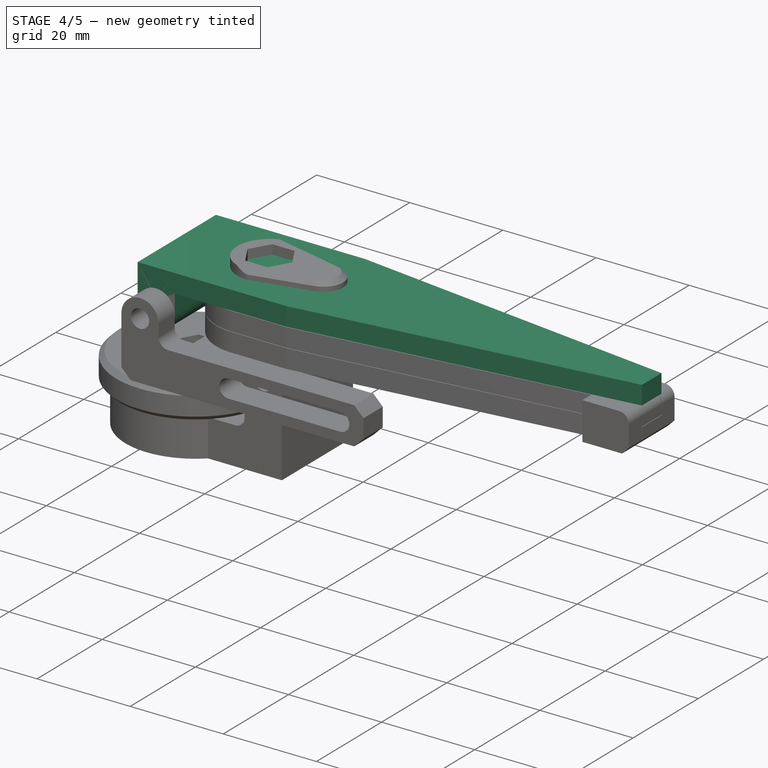
[diagram: stage 4 of 5 — iso view after this stage's code; geometry added in this stage tinted green]
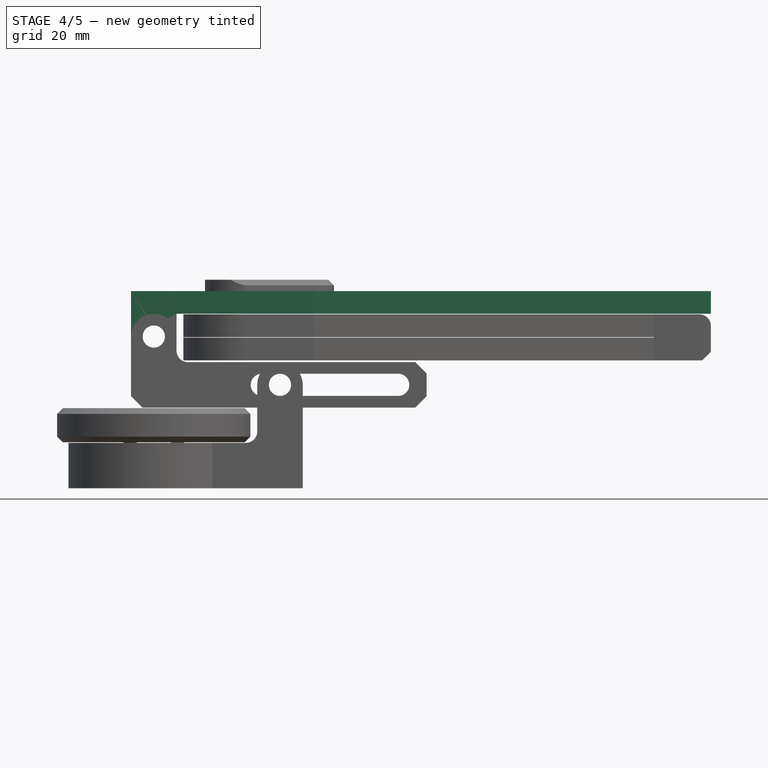
[diagram: stage 4 of 5 — front view after this stage's code; geometry added in this stage tinted green]
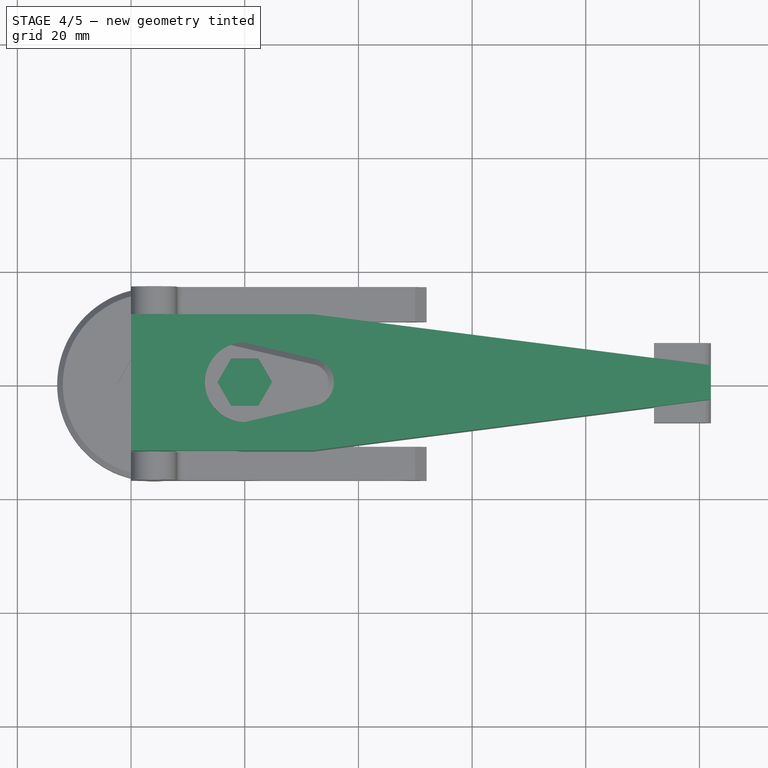
[diagram: stage 4 of 5 — top view after this stage's code; geometry added in this stage tinted green]
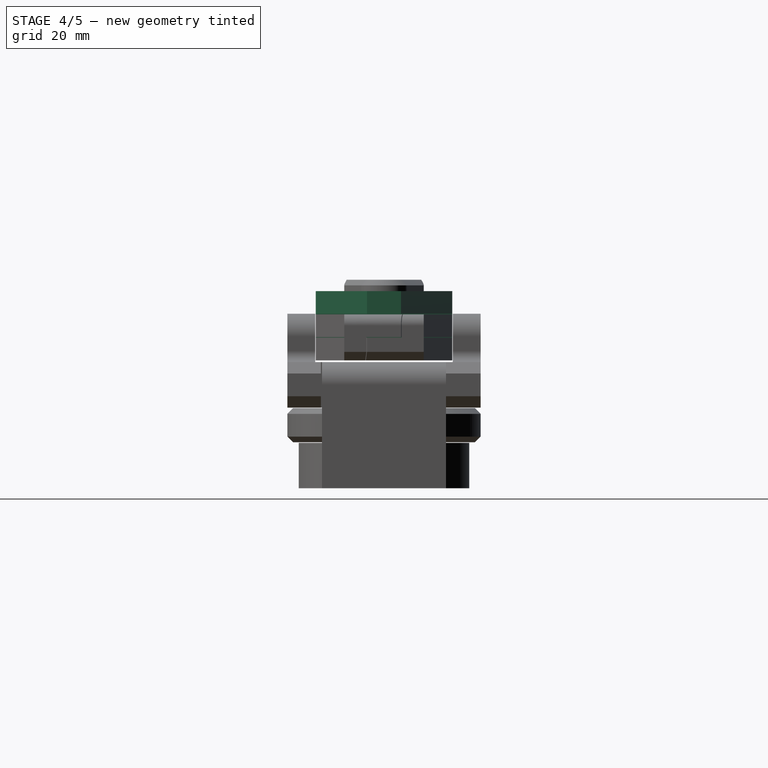
[diagram: stage 4 of 5 — right view after this stage's code; geometry added in this stage tinted green]
FEATURE [Part::FeaturePython] Clone  label="LegBack1"  # Draft clone (typed FeaturePython)
  Objects = -> [Pad]
  Placement = pos=(0,0,-4.1) rot=(0,0,1;0rad)
  Scale = (1,1,1)
FEATURE [Sketcher::SketchObject] Sketch002
  Placement = pos=(-16,12,0) rot=(1,0,0;1.5708rad)
  sketch-geometry (6):
    g0: LineSegment StartX=-4 StartY=4 StartZ=0 EndX=4 EndY=4 EndZ=0
    g1: LineSegment StartX=4 StartY=4 StartZ=0 EndX=4 EndY=-4 EndZ=0
    g2: LineSegment [constr] StartX=4 StartY=-4 StartZ=0 EndX=-4 EndY=-4 EndZ=0
    g3: LineSegment StartX=-4 StartY=-4 StartZ=0 EndX=-4 EndY=4 EndZ=0
    g4: ArcOfCircle CenterX=0 CenterY=-4 CenterZ=0 NormalX=0 NormalY=0 NormalZ=1 Radius=4 StartAngle=3.14159 EndAngle=6.28319
    g5: Circle CenterX=0 CenterY=-4 CenterZ=0 NormalX=0 NormalY=0 NormalZ=1 Radius=1.95
  constraints (17):
    c: Coincident(g0,g1)
    c: Coincident(g1,g2)
    c: Coincident(g2,g3)
    c: Coincident(g3,g0)
    c: Horizontal(g0)
    c: Horizontal(g2)
    c: Vertical(g1)
    c: Vertical(g3)
    c: Symmetric(g0,g0,g-2)
    c: Symmetric(g2,g0,g-1)
    c: PointOnObject(g4,g2)
    c: Coincident(g2,g4)
    c: Coincident(g1,g4)
    c: Radius(g4) = 4
    c: DistanceY(g3) = 8
    c: Coincident(g5,g4)
    c: Radius(g5) = 1.95
FEATURE [PartDesign::Pad] Pad002  label="FirstLegHinge"
  Length = 24
  Length2 = 100
  Placement = pos=(-16,12,0) rot=(1,0,0;1.5708rad)
  Sketch = -> Sketch002
  Type = 0
FEATURE [Part::MultiFuse] Fusion
  Shapes = -> [Pad002,Pad]
FEATURE [Part::Cut] Cut001
  Base = -> Clone
  Tool = -> Fusion001
FEATURE [Part::Fillet] Fillet001  label="Leg3"
  Base = -> Cut001
  Edges = 2 edges r=11: [Edge2,Edge16]
FEATURE [Part::FeaturePython] Clone004  label="Clone of LegGrooves"  # Draft clone (typed FeaturePython)
  Objects = -> [Fillet002]
  Placement = pos=(0,0,-5) rot=(0,0,1;0rad)
  Scale = (1,1,1)
FEATURE [Part::Cut] Cut005
  Base = -> Fillet001
  Tool = -> Clone004
FEATURE [Part::Cut] Cut008
  Base = -> Fillet
  Tool = -> Clone005
FEATURE [Part::MultiFuse] Fusion003
  Shapes = -> [Cut008,Cut009]
FEATURE [Part::FeaturePython] Clone006  label="Clone of Cut009"  # Draft clone (typed FeaturePython)
  Objects = -> [Cut009]
  Placement = pos=(0,0,-8.3) rot=(1,0,0;3.14159rad)
  Scale = (1,1,1)
FEATURE [Part::MultiFuse] Fusion004
  Shapes = -> [Cut005,Clone006]
FEATURE [Part::Cut] Cut010
  Base = -> Fusion003
  Tool = -> Loft
FEATURE [Part::Fillet] Fillet006
  Base = -> Cut010
  Edges = 1 edges r=2: [Edge270]
FEATURE [Part::Fillet] Fillet007
  Base = -> Fusion004
  Edges = 2 edges r=2: [Edge99,Edge269]
FEATURE [Part::Chamfer] Chamfer002  label="BackLegA"
  Base = -> Fillet007
  Edges = 1 edges r=1.5: [Edge279]
FEATURE [Part::Chamfer] Chamfer003  label="BackLegB"
  Base = -> Fillet006
  Edges = 2 edges r=1.5: [Edge3,Edge18]
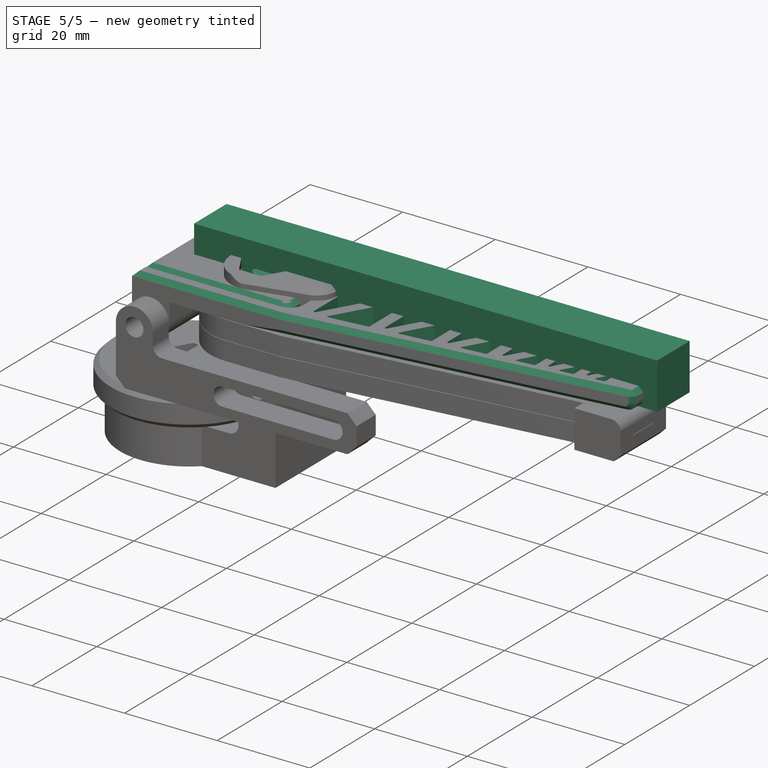
[diagram: stage 5 of 5 — iso view after this stage's code; geometry added in this stage tinted green]
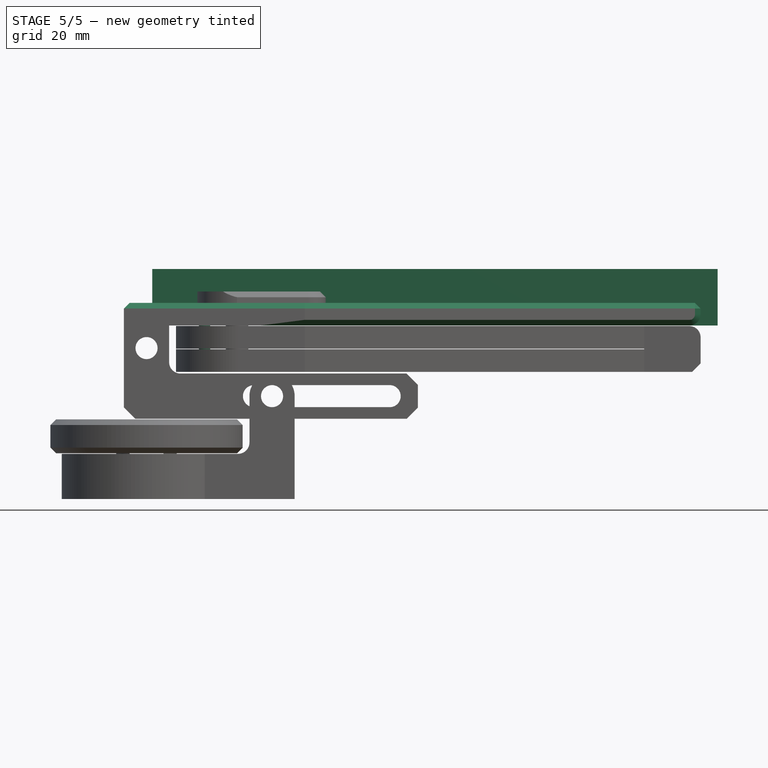
[diagram: stage 5 of 5 — front view after this stage's code; geometry added in this stage tinted green]
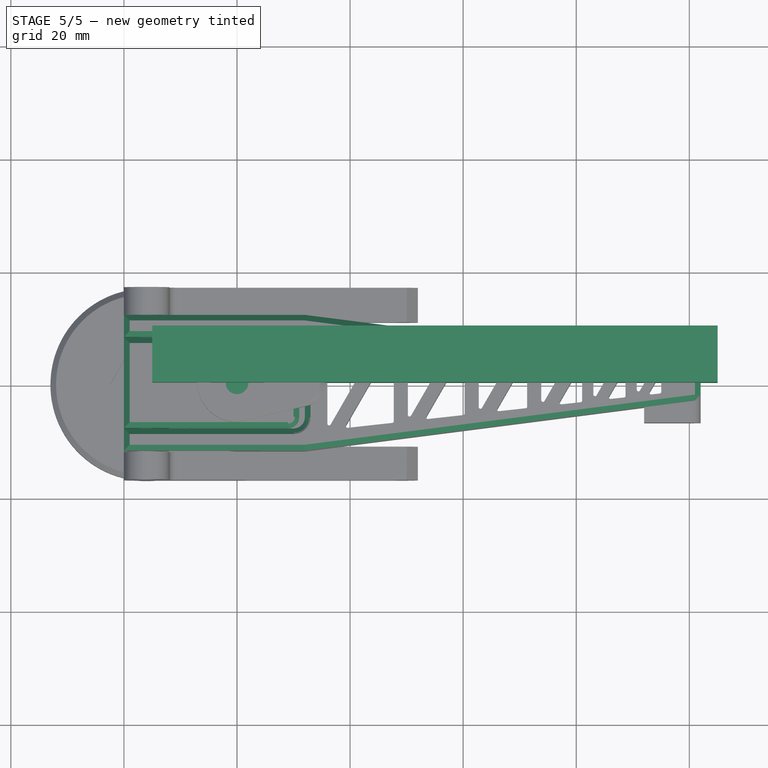
[diagram: stage 5 of 5 — top view after this stage's code; geometry added in this stage tinted green]
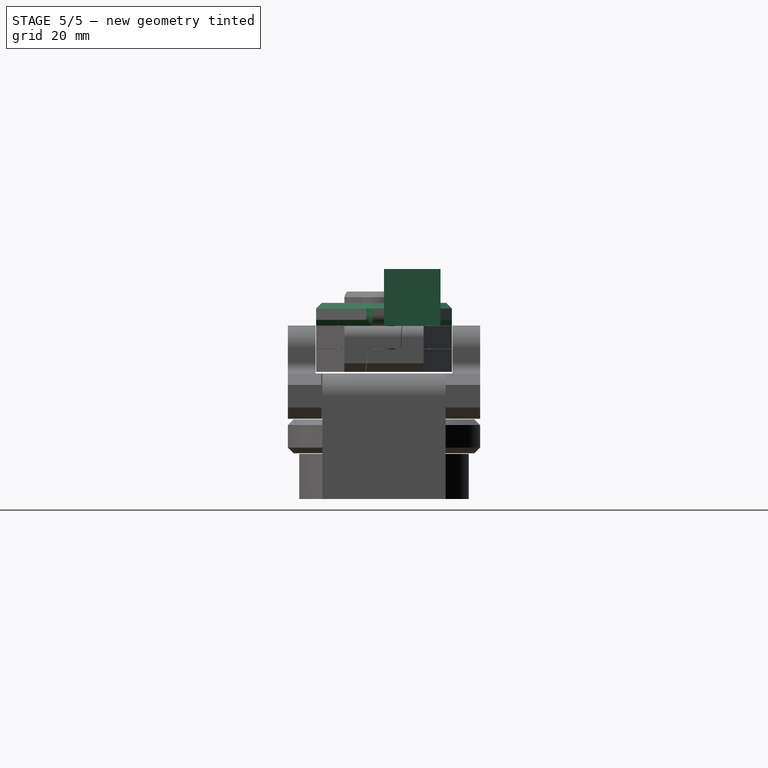
[diagram: stage 5 of 5 — right view after this stage's code; geometry added in this stage tinted green]
FEATURE [Sketcher::SketchObject] Sketch  label="skFrontLeg"
  sketch-geometry (7):
    g0: LineSegment StartX=-12 StartY=12 StartZ=0 EndX=12 EndY=12 EndZ=0
    g1: LineSegment StartX=12 StartY=12 StartZ=0 EndX=82 EndY=3 EndZ=0
    g2: LineSegment StartX=82 StartY=3 StartZ=0 EndX=82 EndY=-3 EndZ=0
    g3: LineSegment StartX=12 StartY=-12 StartZ=0 EndX=-12 EndY=-12 EndZ=0
    g4: LineSegment StartX=-12 StartY=-12 StartZ=0 EndX=-12 EndY=12 EndZ=0
    g5: LineSegment [constr] StartX=12 StartY=12 StartZ=0 EndX=12 EndY=-12 EndZ=0
    g6: LineSegment StartX=12 StartY=-12 StartZ=0 EndX=82 EndY=-3 EndZ=0
  constraints (20):
    c: Horizontal(g0)
    c: Coincident(g1,g2)
    c: Horizontal(g3)
    c: Coincident(g3,g4)
    c: Vertical(g4)
    c: Vertical(g2)
    c: Symmetric(g1,g2,g-1)
    c: Vertical(g5)
    c: Coincident(g0,g5)
    c: Symmetric(g0,g3,g-1)
    c: Coincident(g0,g4)
    c: Symmetric(g0,g0,g-2)
    c: DistanceY(g2) = -6
    c: Equal(g5,g0)
    c: Equal(g0,g4)
    c: Equal(g4,g3)
    c: DistanceY(g5) = -24
    c: Coincident(g1,g0)
    c: Coincident(g2,g6)
    c: Coincident(g3,g6)
FEATURE [Sketcher::SketchObject] Sketch001  label="skLegPivot"
  Placement = pos=(-4.5,8,4) rot=(1,0,0;1.5708rad)
  sketch-geometry (8):
    g0: LineSegment StartX=-7.5 StartY=-8 StartZ=0 EndX=-7.5 EndY=-4 EndZ=0
    g1: LineSegment StartX=-7.5 StartY=-4 StartZ=0 EndX=15.5 EndY=-4 EndZ=0
    g2: LineSegment StartX=15.5 StartY=-4 StartZ=0 EndX=15.5 EndY=0 EndZ=0
    g3: LineSegment StartX=15.5 StartY=0 StartZ=0 EndX=-15.5 EndY=0 EndZ=0
    g4: LineSegment StartX=-15.5 StartY=0 StartZ=0 EndX=-15.5 EndY=-8 EndZ=0
    g5: ArcOfCircle CenterX=-11.5 CenterY=-8 CenterZ=0 NormalX=0 NormalY=0 NormalZ=1 Radius=4 StartAngle=3.14159 EndAngle=6.28319
    g6: LineSegment [constr] StartX=-15.5 StartY=-8 StartZ=0 EndX=-7.5 EndY=-8 EndZ=0
    g7: Circle CenterX=-11.5 CenterY=-8 CenterZ=0 NormalX=0 NormalY=0 NormalZ=1 Radius=1.95
  constraints (23):
    c: Vertical(g0)
    c: Coincident(g0,g1)
    c: Horizontal(g1)
    c: Coincident(g1,g2)
    c: Vertical(g2)
    c: Coincident(g2,g3)
    c: Horizontal(g3)
    c: Coincident(g3,g4)
    c: Vertical(g4)
    c: Horizontal(g6)
    c: PointOnObject(g5,g6)
    c: Coincident(g5,g6)
    c: Coincident(g5,g6)
    c: Coincident(g4,g5)
    c: Coincident(g0,g5)
    c: Symmetric(g3,g2,g-2)
    c: DistanceX(g3) = -31
    c: DistanceY(g2) = 4
    c: Radius(g7) = 1.95
    c: Coincident(g7,g5)
    c: Radius(g5) = 4
    c: DistanceY(g4) = -8
    c: PointOnObject(g3,g-1)
FEATURE [Part::Box] Box  label="Cube"
  Height = 10
  Length = 100
  Placement = pos=(-15,0,0) rot=(0,0,1;0rad)
  Width = 10
FEATURE [PartDesign::Pad] Pad001  label="LegPivot"
  Length = 16
  Length2 = 100
  Placement = pos=(-4.5,8,4) rot=(1,0,0;1.5708rad)
  Sketch = -> Sketch001
  Type = 0
FEATURE [Sketcher::SketchObject] Sketch005  label="skStopCut"
  Placement = pos=(0,0,-9) rot=(0,0,1;0rad)
  sketch-geometry (6):
    g0: LineSegment [constr] StartX=-7.45649 StartY=10.649 StartZ=0 EndX=0 EndY=0 EndZ=0
    g1: LineSegment [constr] StartX=0 StartY=0 StartZ=0 EndX=-7.45649 EndY=-10.649 EndZ=0
    g2: ArcOfCircle CenterX=0 CenterY=0 CenterZ=0 NormalX=0 NormalY=0 NormalZ=1 Radius=7 StartAngle=2.18166 EndAngle=4.10152
    g3: ArcOfCircle CenterX=0 CenterY=0 CenterZ=0 NormalX=0 NormalY=0 NormalZ=1 Radius=4.5 StartAngle=2.18166 EndAngle=4.10152
    g4: ArcOfCircle CenterX=-3.29806 CenterY=4.71012 CenterZ=0 NormalX=0 NormalY=0 NormalZ=1 Radius=1.25 StartAngle=5.32325 EndAngle=8.46485
    g5: ArcOfCircle CenterX=-3.29806 CenterY=-4.71012 CenterZ=0 NormalX=0 NormalY=0 NormalZ=1 Radius=1.25 StartAngle=4.10152 EndAngle=7.24312
  constraints (20):
    c: Coincident(g0,g-1)
    c: Angle(g-2,g0) = 0.610865
    c: Coincident(g1,g-1)
    c: Angle(g-2,g1) = 2.53073
    c: Equal(g0,g1)
    c: Coincident(g2,g-1)
    c: PointOnObject(g2,g1)
    c: PointOnObject(g2,g0)
    c: Radius(g2) = 7
    c: Coincident(g3,g-1)
    c: PointOnObject(g3,g1)
    c: PointOnObject(g3,g0)
    c: Radius(g3) = 4.5
    c: Distance(g0) = 13
    c: PointOnObject(g4,g0)
    c: Coincident(g2,g4)
    c: Coincident(g3,g4)
    c: PointOnObject(g5,g1)
    c: Coincident(g3,g5)
    c: Coincident(g2,g5)
FEATURE [Part::Box] Box001  label="HindgeCut"
  Height = 14
  Length = 33
  Placement = pos=(-21,-8.1,-9) rot=(0,0,1;0rad)
  Width = 16.2
FEATURE [Part::Cut] Cut  label="FrontLeg"
  Base = -> Fusion
  Tool = -> Box001
FEATURE [Part::Cylinder] Cylinder001  label="Cylinder"
  Angle = 360
  Height = 12.7
  Placement = pos=(0,0,-8) rot=(0,0,1;0rad)
  Radius = 2
FEATURE [Part::Cylinder] Cylinder002  label="PinStop"
  Angle = 360
  Height = 8.2
  Placement = pos=(-5.75,0,-8.2) rot=(0,0,1;0rad)
  Radius = 1
FEATURE [Part::MultiFuse] Fusion002
  Shapes = -> [Pad001,Cylinder002]
FEATURE [Part::Cut] Cut003  label="LegPivot001"
  Base = -> Fusion002
  Tool = -> Cylinder
FEATURE [Part::Fillet] Fillet003
  Base = -> Cut
  Edges = 2 edges r=2: [Edge12,Edge31]
FEATURE [Part::Fillet] Fillet004
  Base = -> Cut003
  Edges = 2 edges r=2: [Edge13,Edge17]
FEATURE [Part::Cut] Cut007
  Base = -> Fillet003
  Tool = -> Fillet002
FEATURE [Part::RegularPolygon] RegularPolygon  label="Regular polygon"
  Circumradius = 4.65
  Polygon = 6
FEATURE [Part::Extrusion] Extrude_RegularPolygon  label="NutCut"
  Base = -> RegularPolygon
  Dir = (0,0,3)
  Placement = pos=(0,0,2) rot=(0,0,1;0rad)
  Solid = true
FEATURE [Part::Cut] Cut011
  Base = -> Fillet004
  Tool = -> Extrude_RegularPolygon
FEATURE [Part::Chamfer] Chamfer  label="Leg_Connector"
  Base = -> Cut011
  Edges = 2 edges r=1: [Edge26,Edge31]
FEATURE [Part::Fillet] Fillet005
  Base = -> Cut007
  Edges = 1 edges r=2: [Edge102]
FEATURE [Part::Chamfer] Chamfer001  label="Front_Leg"
  Base = -> Fillet005
  Edges = 13 edges r=1: [Edge1,Edge4,Edge87,Edge91,Edge94,Edge100,Edge101,Edge103,Edge265,Edge268,Edge273,Edge277,Edge280]
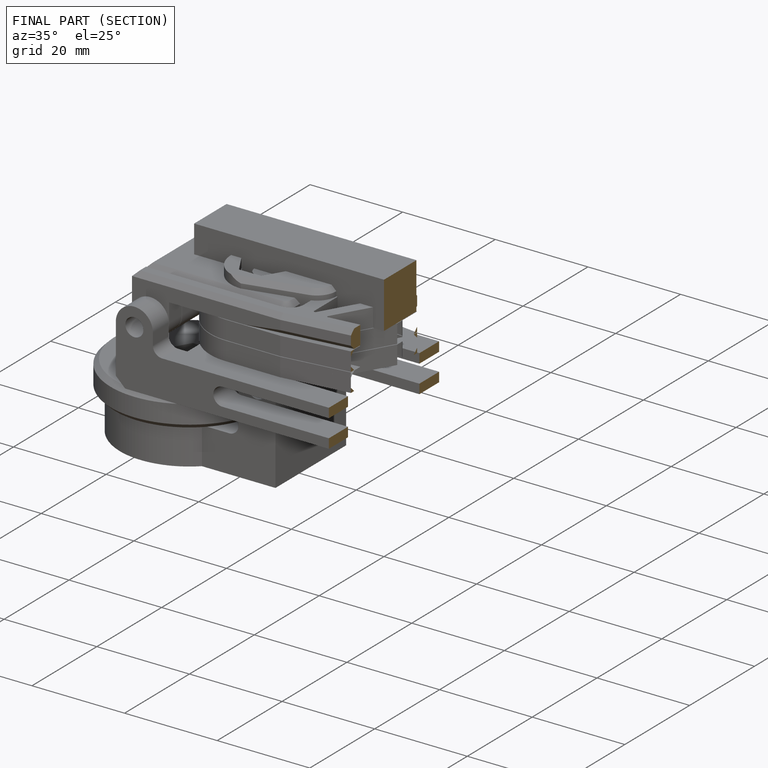
[diagram: finished part — half-section view (interior)]
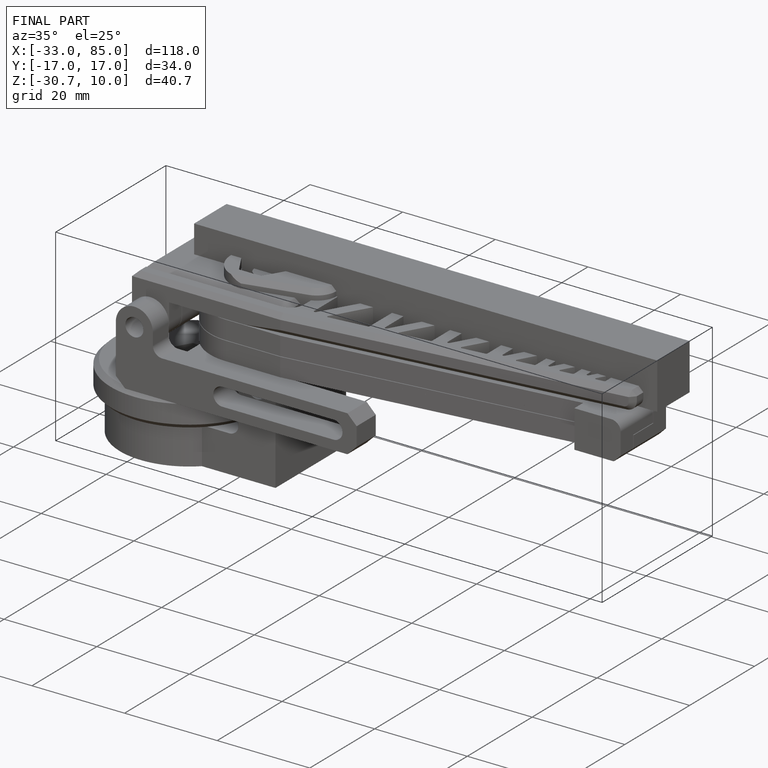
[diagram: finished part — iso view with bounding-box wireframe]
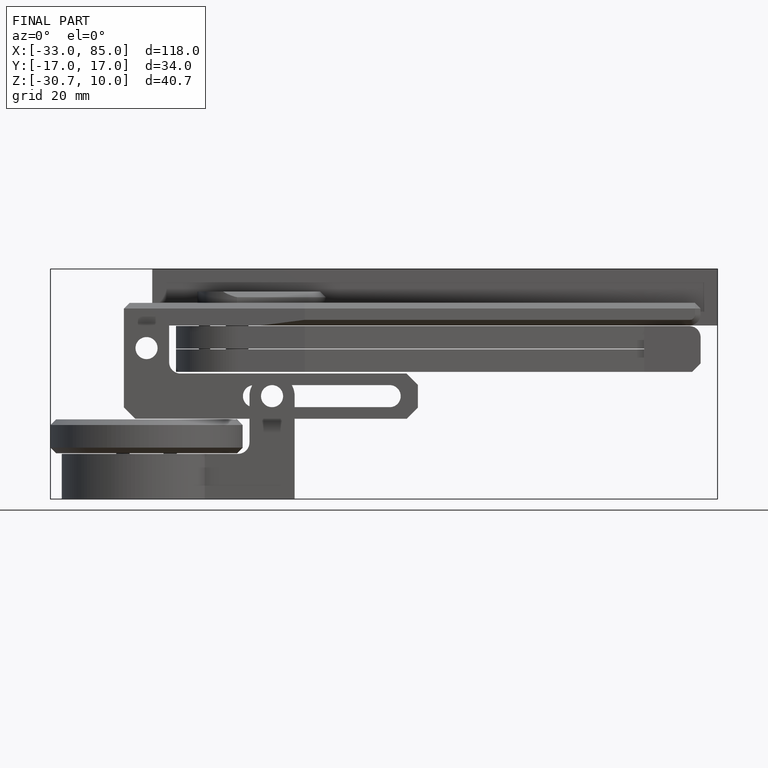
[diagram: finished part — front view with bounding-box wireframe]
